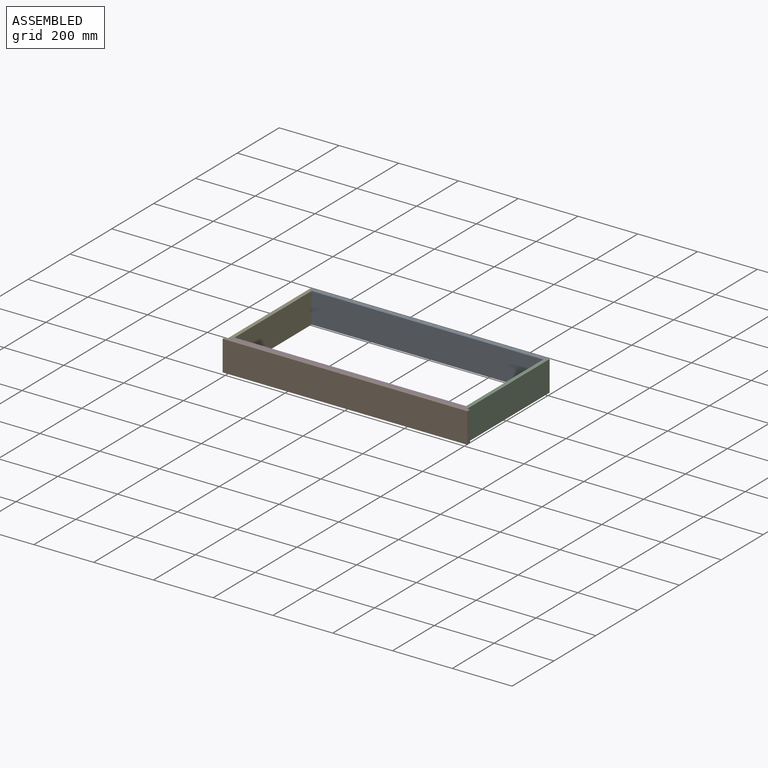
[diagram: assembled view]
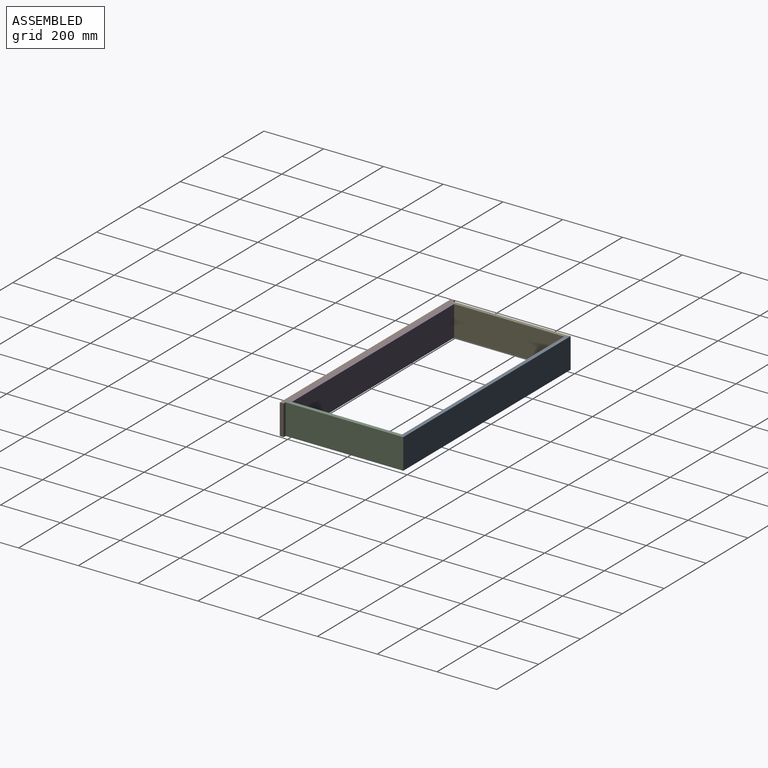
[diagram: assembled view, second angle]
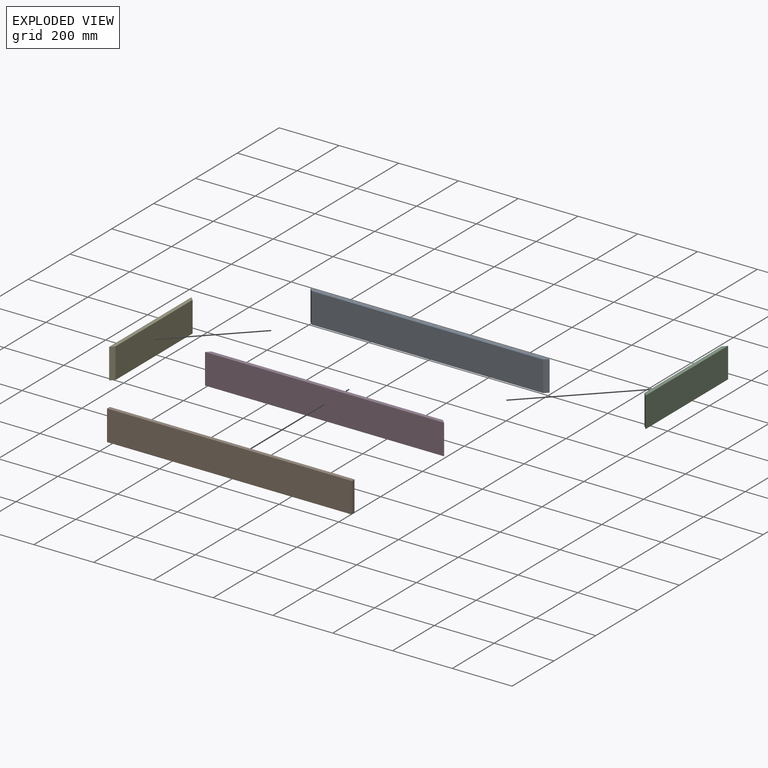
[diagram: exploded view]
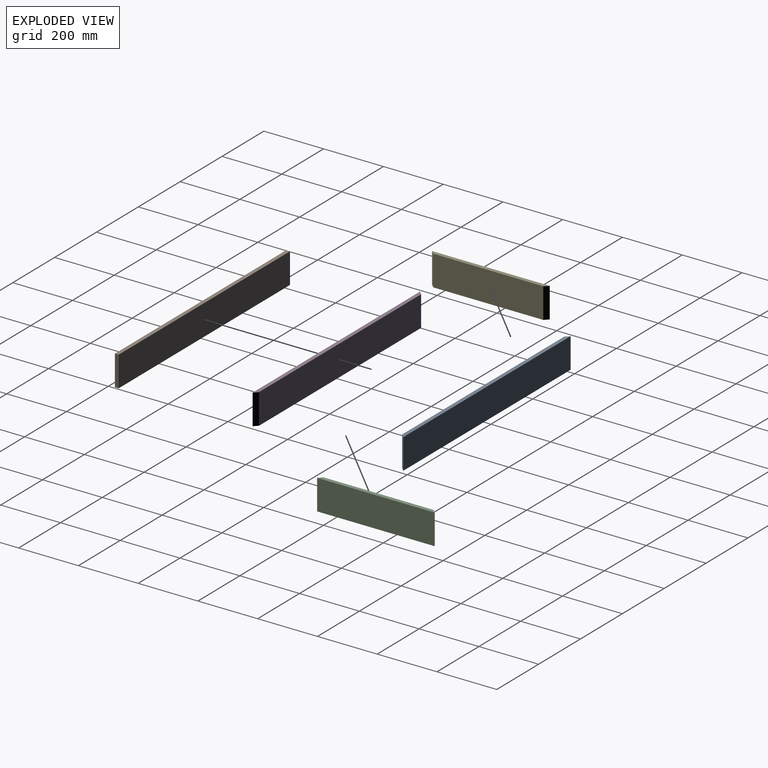
[diagram: exploded view, second angle]
ASSEMBLY  parts=5 mates=4
PART A: 6 faces, bbox 800.1x12.7x101.6 mm
  f0: plane 800.1x12.7mm, normal (0,0,-1), area 10000mm2, adj f2,f3,f4,f5
  f1: plane 800.1x12.7mm, normal (0,0,1), area 10000mm2, adj f2,f3,f4,f5
  f2: plane 800.1x101.6mm, normal (0,-1,0), area 81290.2mm2, adj f0,f1,f4,f5
  f3: plane 774.7x101.6mm, normal (0,1,0), area 78709.5mm2, adj f0,f1,f4,f5
  f4: plane 101.6x12.7mm, normal (-0.71,0.71,0), area 1824.8mm2, adj f0,f1,f2,f3
  f5: plane 101.6x12.7mm, normal (0.71,0.71,0), area 1824.8mm2, adj f0,f1,f2,f3
PART B: 6 faces, bbox 819.2x12.7x101.6 mm
  f0: plane 101.6x12.7mm, normal (-1,0,0), area 1290.3mm2, adj f1,f3,f4,f5
  f1: plane 819.15x12.7mm, normal (0,0,-1), area 10403.2mm2, adj f0,f2,f4,f5
  f2: plane 101.6x12.7mm, normal (1,0,0), area 1290.3mm2, adj f1,f3,f4,f5
  f3: plane 819.15x12.7mm, normal (0,0,1), area 10403.2mm2, adj f0,f2,f4,f5
  f4: plane 819.15x101.6mm, normal (0,-1,0), area 83225.6mm2, adj f0,f1,f2,f3
  f5: plane 819.15x101.6mm, normal (0,1,0), area 83225.6mm2, adj f0,f1,f2,f3
PART C: 6 faces, bbox 393.7x12.7x101.6 mm
  f0: plane 393.7x12.7mm, normal (0,0,-1), area 4838.7mm2, adj f2,f3,f4,f5
  f1: plane 393.7x12.7mm, normal (0,0,1), area 4838.7mm2, adj f2,f3,f4,f5
  f2: plane 368.3x101.6mm, normal (0,-1,0), area 37419.3mm2, adj f0,f1,f4,f5
  f3: plane 393.7x101.6mm, normal (0,1,0), area 39999.9mm2, adj f0,f1,f4,f5
  f4: plane 101.6x12.7mm, normal (0.71,-0.71,0), area 1824.8mm2, adj f0,f1,f2,f3
  f5: plane 101.6x12.7mm, normal (-0.71,-0.71,0), area 1824.8mm2, adj f0,f1,f2,f3
PART D: same geometry as A
PART E: same geometry as C
PLACE A rot(axis=(0,0,1),180deg) t=(809.62,381,0)mm
PLACE B at identity fixed
PLACE C rot(axis=(0,0,-1),90deg) t=(809.62,393.7,0)mm
PLACE D t=(9.52,12.7,0)mm
PLACE E rot(axis=(0,0,1),90deg) t=(9.52,0,0)mm
MATE fastened A.f5 <-> E.f4  axis (-0.71,-0.71,0) through (15.87,387.35,50.8)mm
MATE fastened E.f5 <-> D.f4  axis (0.71,-0.71,0) through (15.87,6.35,50.8)mm
MATE fastened C.f4 <-> D.f5  axis (-0.71,-0.71,0) through (803.27,6.35,50.8)mm
MATE fastened D.f2 <-> B.f5  axis (0,-1,0) through (409.58,0,50.8)mm
